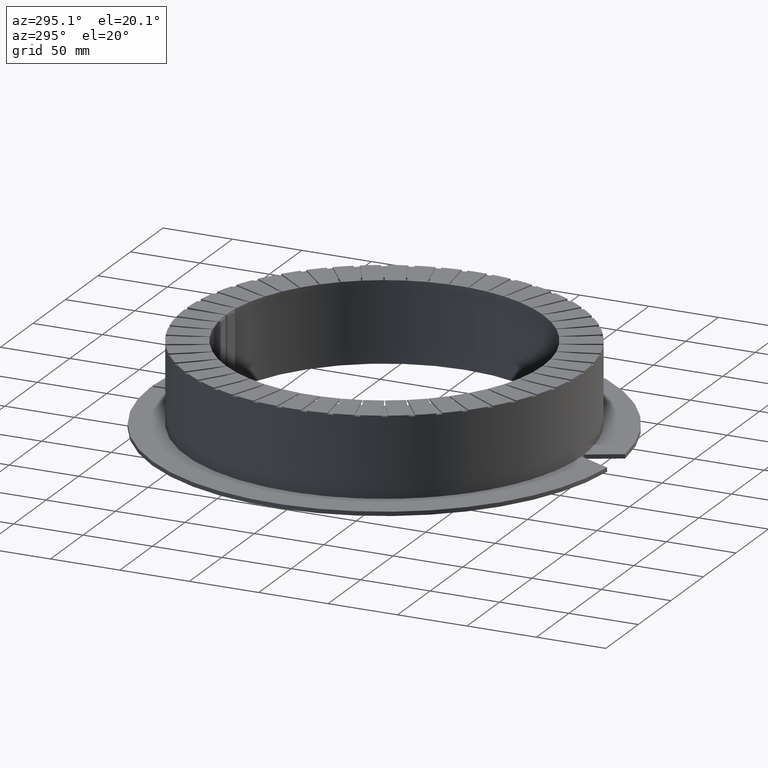
[diagram: clean part render]
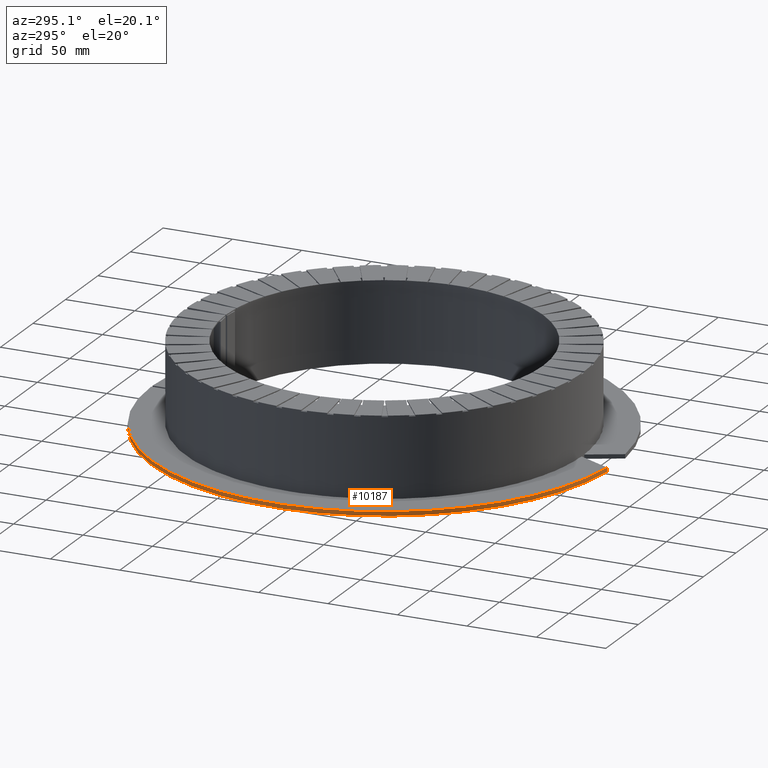
[diagram: same view with one face highlighted and labeled with its STEP entity id]
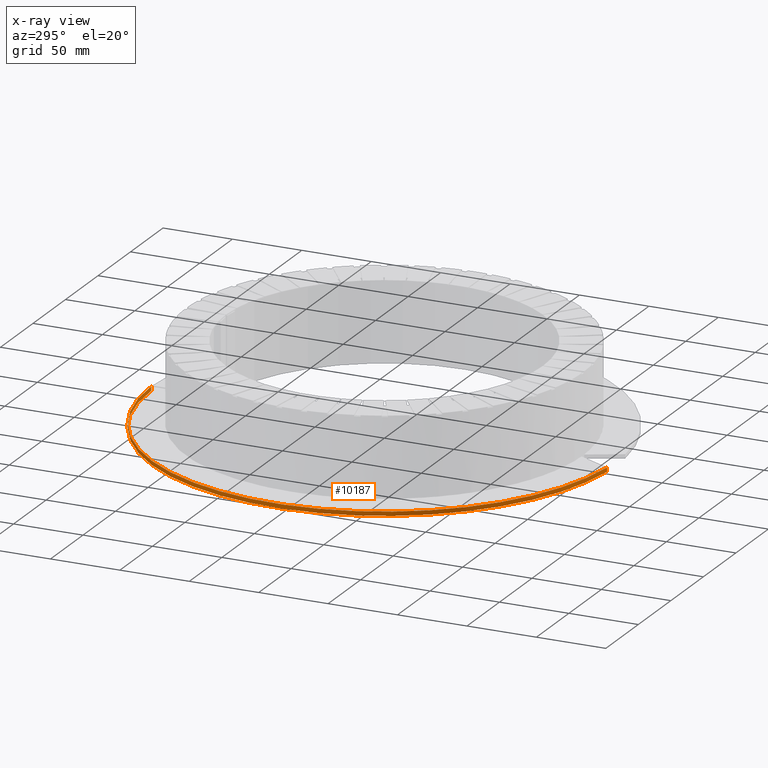
[diagram: x-ray of the same camera — body ghosted, the highlighted face saturated]
A machine part, auxiliary view. The second image highlights one B-rep face of the part: STEP entity #10187.
The next image is the same camera in x-ray: the body ghosted, the highlighted face saturated — about 0% of this face is hidden behind the body in this view.
In plain terms, the highlighted cylindrical surface (partial cylindrical patch) has radius 167.5 mm, axis along (0, 0, -1).
Its self-contained STEP definition (entity closure, byte-faithful):
#10065=CARTESIAN_POINT('',(-13.932807335226638,-166.91952216490279,-29.950000000000003));
#10066=VERTEX_POINT('',#10065);
#10083=CARTESIAN_POINT('',(-13.932807335226638,-166.91952216490279,-26.950000000000003));
#10084=VERTEX_POINT('',#10083);
#10091=CARTESIAN_POINT('',(-13.932807335226638,-166.91952216490279,-26.950000000000003));
#10092=DIRECTION('',(0.0,0.0,-1.0));
#10093=VECTOR('',#10092,3.0);
#10094=LINE('',#10091,#10093);
#10095=EDGE_CURVE('',#10084,#10066,#10094,.T.);
#10138=CARTESIAN_POINT('',(-0.99999999999998,167.49701489877364,-29.950000000000003));
#10139=VERTEX_POINT('',#10138);
#10146=CARTESIAN_POINT('',(-0.99999999999998,167.49701489877364,-26.950000000000003));
#10147=VERTEX_POINT('',#10146);
#10148=CARTESIAN_POINT('',(-0.99999999999998,167.49701489877364,-26.950000000000003));
#10149=DIRECTION('',(0.0,0.0,-1.0));
#10150=VECTOR('',#10149,3.0);
#10151=LINE('',#10148,#10150);
#10152=EDGE_CURVE('',#10147,#10139,#10151,.T.);
#10164=CARTESIAN_POINT('',(0.0,0.0,-26.950000000000003));
#10165=DIRECTION('',(0.0,0.0,-1.0));
#10166=DIRECTION('',(0.083180939314786,0.996534460685987,0.0));
#10167=AXIS2_PLACEMENT_3D('',#10164,#10165,#10166);
#10168=CYLINDRICAL_SURFACE('',#10167,167.50000000000003);
#10169=CARTESIAN_POINT('',(0.0,0.0,-29.950000000000003));
#10170=DIRECTION('',(0.0,0.0,1.0));
#10171=DIRECTION('',(0.083180939314786,0.996534460685987,0.0));
#10172=AXIS2_PLACEMENT_3D('',#10169,#10170,#10171);
#10173=CIRCLE('',#10172,167.50000000000003);
#10174=EDGE_CURVE('',#10139,#10066,#10173,.T.);
#10175=ORIENTED_EDGE('',*,*,#10174,.T.);
#10176=ORIENTED_EDGE('',*,*,#10095,.F.);
#10177=CARTESIAN_POINT('',(0.0,0.0,-26.950000000000003));
#10178=DIRECTION('',(0.0,0.0,1.0));
#10179=DIRECTION('',(0.083180939314786,0.996534460685987,0.0));
#10180=AXIS2_PLACEMENT_3D('',#10177,#10178,#10179);
#10181=CIRCLE('',#10180,167.50000000000003);
#10182=EDGE_CURVE('',#10147,#10084,#10181,.T.);
#10183=ORIENTED_EDGE('',*,*,#10182,.F.);
#10184=ORIENTED_EDGE('',*,*,#10152,.T.);
#10185=EDGE_LOOP('',(#10175,#10176,#10183,#10184));
#10186=FACE_OUTER_BOUND('',#10185,.T.);
#10187=ADVANCED_FACE('',(#10186),#10168,.T.);